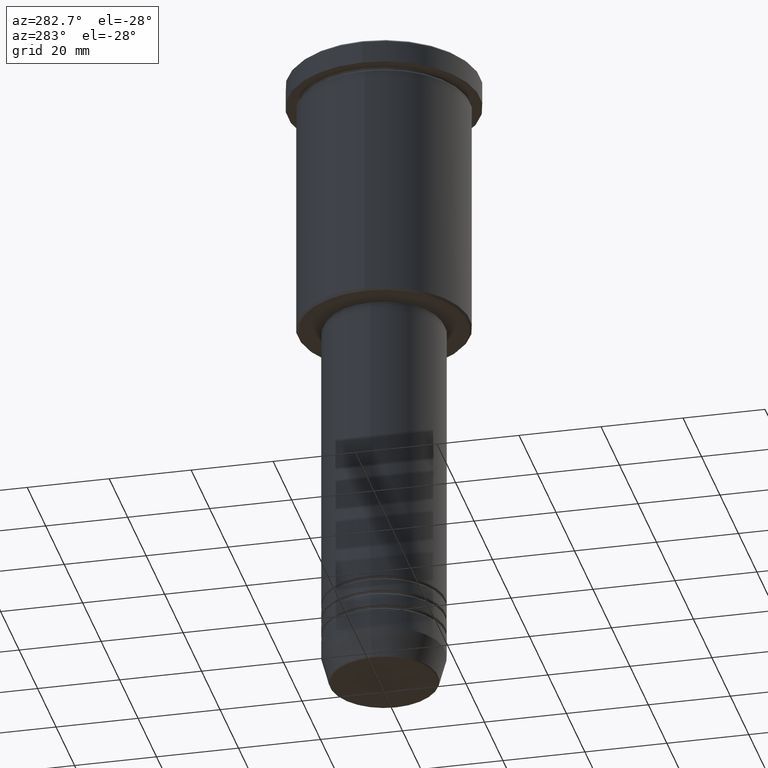
[diagram: clean part render]
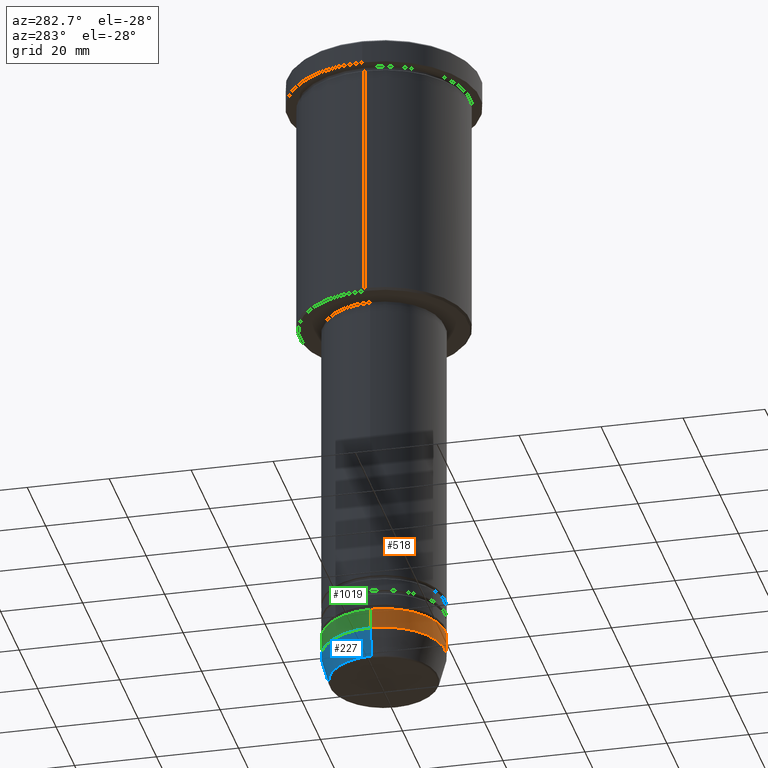
[diagram: same view with three faces highlighted in distinct colors, each labeled with its STEP entity id]
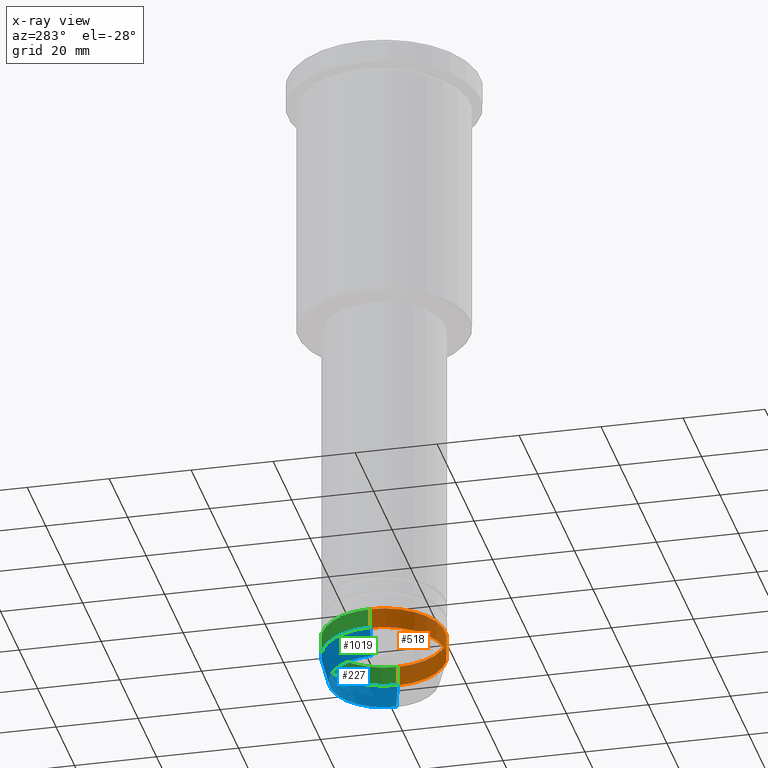
[diagram: x-ray of the same camera — body ghosted, the three highlighted faces saturated]
A machine part, auxiliary view with three faces highlighted in distinct colors.
The next image is the same camera in x-ray (body ghosted, the three faces saturated) — at least one of them is partly hidden behind the body in this view.
Their STEP definitions:

[orange] entity #518 — the highlighted cylindrical surface (partial cylindrical patch) has radius 15 mm, axis along (-0, -0, 1).
#50 = VERTEX_POINT ( 'NONE', #1173 ) ;
#80 = EDGE_CURVE ( 'NONE', #963, #50, #1183, .T. ) ;
#127 = CARTESIAN_POINT ( 'NONE',  ( -15.00000000000000000, 1.836970198721029589E-15, 0.000000000000000000 ) ) ;
#143 = AXIS2_PLACEMENT_3D ( 'NONE', #348, #887, #614 ) ;
#161 = CYLINDRICAL_SURFACE ( 'NONE', #820, 15.00000000000000000 ) ;
#244 = VECTOR ( 'NONE', #1152, 1000.000000000000000 ) ;
#255 = FACE_OUTER_BOUND ( 'NONE', #834, .T. ) ;
#274 = LINE ( 'NONE', #418, #244 ) ;
#348 = CARTESIAN_POINT ( 'NONE',  ( 0.000000000000000000, 0.000000000000000000, -154.0000000000000284 ) ) ;
#401 = DIRECTION ( 'NONE',  ( -0.000000000000000000, -0.000000000000000000, 1.000000000000000000 ) ) ;
#418 = CARTESIAN_POINT ( 'NONE',  ( 15.00000000000000000, 0.000000000000000000, 0.000000000000000000 ) ) ;
#426 = VECTOR ( 'NONE', #401, 1000.000000000000000 ) ;
#496 = EDGE_CURVE ( 'NONE', #543, #935, #536, .T. ) ;
#518 = ADVANCED_FACE ( 'NONE', ( #255 ), #161, .T. ) ;
#532 = AXIS2_PLACEMENT_3D ( 'NONE', #735, #1044, #1024 ) ;
#536 = CIRCLE ( 'NONE', #143, 15.00000000000000000 ) ;
#543 = VERTEX_POINT ( 'NONE', #1050 ) ;
#583 = ORIENTED_EDGE ( 'NONE', *, *, #496, .T. ) ;
#614 = DIRECTION ( 'NONE',  ( 1.000000000000000000, 0.000000000000000000, 0.000000000000000000 ) ) ;
#639 = EDGE_CURVE ( 'NONE', #543, #963, #783, .T. ) ;
#735 = CARTESIAN_POINT ( 'NONE',  ( 0.000000000000000000, 0.000000000000000000, -149.0000000000000284 ) ) ;
#744 = ORIENTED_EDGE ( 'NONE', *, *, #80, .F. ) ;
#782 = CARTESIAN_POINT ( 'NONE',  ( -15.00000000000000000, 1.836970198721029589E-15, -149.0000000000000284 ) ) ;
#783 = LINE ( 'NONE', #127, #426 ) ;
#791 = DIRECTION ( 'NONE',  ( -0.000000000000000000, -0.000000000000000000, 1.000000000000000000 ) ) ;
#796 = CARTESIAN_POINT ( 'NONE',  ( 0.000000000000000000, 0.000000000000000000, 0.000000000000000000 ) ) ;
#820 = AXIS2_PLACEMENT_3D ( 'NONE', #796, #791, #1077 ) ;
#824 = EDGE_CURVE ( 'NONE', #935, #50, #274, .T. ) ;
#834 = EDGE_LOOP ( 'NONE', ( #926, #583, #849, #744 ) ) ;
#849 = ORIENTED_EDGE ( 'NONE', *, *, #824, .T. ) ;
#887 = DIRECTION ( 'NONE',  ( -0.000000000000000000, -0.000000000000000000, 1.000000000000000000 ) ) ;
#926 = ORIENTED_EDGE ( 'NONE', *, *, #639, .F. ) ;
#935 = VERTEX_POINT ( 'NONE', #1056 ) ;
#963 = VERTEX_POINT ( 'NONE', #782 ) ;
#1024 = DIRECTION ( 'NONE',  ( 1.000000000000000000, 0.000000000000000000, 0.000000000000000000 ) ) ;
#1044 = DIRECTION ( 'NONE',  ( -0.000000000000000000, -0.000000000000000000, 1.000000000000000000 ) ) ;
#1050 = CARTESIAN_POINT ( 'NONE',  ( -15.00000000000000000, 1.836970198721029589E-15, -154.0000000000000284 ) ) ;
#1056 = CARTESIAN_POINT ( 'NONE',  ( 15.00000000000000000, 0.000000000000000000, -154.0000000000000284 ) ) ;
#1077 = DIRECTION ( 'NONE',  ( 1.000000000000000000, 0.000000000000000000, 0.000000000000000000 ) ) ;
#1152 = DIRECTION ( 'NONE',  ( -0.000000000000000000, -0.000000000000000000, 1.000000000000000000 ) ) ;
#1173 = CARTESIAN_POINT ( 'NONE',  ( 15.00000000000000000, 0.000000000000000000, -149.0000000000000284 ) ) ;
#1183 = CIRCLE ( 'NONE', #532, 15.00000000000000000 ) ;

[blue] entity #227 — the highlighted conical surface has half-angle 15 deg.
#20 = AXIS2_PLACEMENT_3D ( 'NONE', #1054, #965, #1108 ) ;
#42 = CIRCLE ( 'NONE', #406, 15.00000000000000000 ) ;
#89 = CIRCLE ( 'NONE', #20, 13.22365507213719482 ) ;
#105 = VECTOR ( 'NONE', #1179, 1000.000000000000000 ) ;
#107 = DIRECTION ( 'NONE',  ( 1.000000000000000000, 0.000000000000000000, 0.000000000000000000 ) ) ;
#134 = EDGE_LOOP ( 'NONE', ( #464, #888, #880, #587 ) ) ;
#147 = FACE_OUTER_BOUND ( 'NONE', #134, .T. ) ;
#227 = ADVANCED_FACE ( 'NONE', ( #147 ), #995, .T. ) ;
#249 = CARTESIAN_POINT ( 'NONE',  ( -13.22365507213719660, 1.728200442216588780E-15, -160.6294095225512706 ) ) ;
#399 = CARTESIAN_POINT ( 'NONE',  ( 13.22365507213719482, 0.000000000000000000, -160.6294095225512706 ) ) ;
#406 = AXIS2_PLACEMENT_3D ( 'NONE', #938, #493, #107 ) ;
#412 = EDGE_CURVE ( 'NONE', #935, #543, #42, .T. ) ;
#464 = ORIENTED_EDGE ( 'NONE', *, *, #801, .T. ) ;
#484 = VERTEX_POINT ( 'NONE', #399 ) ;
#493 = DIRECTION ( 'NONE',  ( -0.000000000000000000, -0.000000000000000000, 1.000000000000000000 ) ) ;
#543 = VERTEX_POINT ( 'NONE', #1050 ) ;
#587 = ORIENTED_EDGE ( 'NONE', *, *, #994, .F. ) ;
#589 = AXIS2_PLACEMENT_3D ( 'NONE', #1163, #698, #591 ) ;
#591 = DIRECTION ( 'NONE',  ( 1.000000000000000000, 0.000000000000000000, 0.000000000000000000 ) ) ;
#687 = EDGE_CURVE ( 'NONE', #1160, #543, #1155, .T. ) ;
#698 = DIRECTION ( 'NONE',  ( -0.000000000000000000, -0.000000000000000000, 1.000000000000000000 ) ) ;
#717 = VECTOR ( 'NONE', #1136, 1000.000000000000000 ) ;
#801 = EDGE_CURVE ( 'NONE', #484, #1160, #89, .T. ) ;
#880 = ORIENTED_EDGE ( 'NONE', *, *, #412, .F. ) ;
#888 = ORIENTED_EDGE ( 'NONE', *, *, #687, .T. ) ;
#894 = LINE ( 'NONE', #1161, #105 ) ;
#935 = VERTEX_POINT ( 'NONE', #1056 ) ;
#938 = CARTESIAN_POINT ( 'NONE',  ( 0.000000000000000000, 0.000000000000000000, -154.0000000000000284 ) ) ;
#943 = CARTESIAN_POINT ( 'NONE',  ( -15.00000000000000000, 1.836970198721029589E-15, -154.0000000000000284 ) ) ;
#965 = DIRECTION ( 'NONE',  ( -0.000000000000000000, -0.000000000000000000, 1.000000000000000000 ) ) ;
#994 = EDGE_CURVE ( 'NONE', #484, #935, #894, .T. ) ;
#995 = CONICAL_SURFACE ( 'NONE', #589, 15.00000000000000000, 0.2617993877991500740 ) ;
#1050 = CARTESIAN_POINT ( 'NONE',  ( -15.00000000000000000, 1.836970198721029589E-15, -154.0000000000000284 ) ) ;
#1054 = CARTESIAN_POINT ( 'NONE',  ( 0.000000000000000000, 0.000000000000000000, -160.6294095225512706 ) ) ;
#1056 = CARTESIAN_POINT ( 'NONE',  ( 15.00000000000000000, 0.000000000000000000, -154.0000000000000284 ) ) ;
#1108 = DIRECTION ( 'NONE',  ( 1.000000000000000000, 0.000000000000000000, 0.000000000000000000 ) ) ;
#1136 = DIRECTION ( 'NONE',  ( -0.2588190451025213501, 3.169619151431772337E-17, 0.9659258262890680902 ) ) ;
#1155 = LINE ( 'NONE', #943, #717 ) ;
#1160 = VERTEX_POINT ( 'NONE', #249 ) ;
#1161 = CARTESIAN_POINT ( 'NONE',  ( 15.00000000000000000, 0.000000000000000000, -154.0000000000000284 ) ) ;
#1163 = CARTESIAN_POINT ( 'NONE',  ( 0.000000000000000000, 0.000000000000000000, -154.0000000000000284 ) ) ;
#1179 = DIRECTION ( 'NONE',  ( 0.2588190451025213501, 0.000000000000000000, 0.9659258262890680902 ) ) ;

[green] entity #1019 — the highlighted cylindrical surface (partial cylindrical patch) has radius 15 mm, axis along (-0, -0, 1).
#27 = ORIENTED_EDGE ( 'NONE', *, *, #1052, .F. ) ;
#29 = FACE_OUTER_BOUND ( 'NONE', #1029, .T. ) ;
#42 = CIRCLE ( 'NONE', #406, 15.00000000000000000 ) ;
#50 = VERTEX_POINT ( 'NONE', #1173 ) ;
#107 = DIRECTION ( 'NONE',  ( 1.000000000000000000, 0.000000000000000000, 0.000000000000000000 ) ) ;
#127 = CARTESIAN_POINT ( 'NONE',  ( -15.00000000000000000, 1.836970198721029589E-15, 0.000000000000000000 ) ) ;
#149 = ORIENTED_EDGE ( 'NONE', *, *, #412, .T. ) ;
#244 = VECTOR ( 'NONE', #1152, 1000.000000000000000 ) ;
#274 = LINE ( 'NONE', #418, #244 ) ;
#279 = ORIENTED_EDGE ( 'NONE', *, *, #639, .T. ) ;
#401 = DIRECTION ( 'NONE',  ( -0.000000000000000000, -0.000000000000000000, 1.000000000000000000 ) ) ;
#406 = AXIS2_PLACEMENT_3D ( 'NONE', #938, #493, #107 ) ;
#412 = EDGE_CURVE ( 'NONE', #935, #543, #42, .T. ) ;
#418 = CARTESIAN_POINT ( 'NONE',  ( 15.00000000000000000, 0.000000000000000000, 0.000000000000000000 ) ) ;
#426 = VECTOR ( 'NONE', #401, 1000.000000000000000 ) ;
#463 = CARTESIAN_POINT ( 'NONE',  ( 0.000000000000000000, 0.000000000000000000, 0.000000000000000000 ) ) ;
#493 = DIRECTION ( 'NONE',  ( -0.000000000000000000, -0.000000000000000000, 1.000000000000000000 ) ) ;
#543 = VERTEX_POINT ( 'NONE', #1050 ) ;
#557 = CARTESIAN_POINT ( 'NONE',  ( 0.000000000000000000, 0.000000000000000000, -149.0000000000000284 ) ) ;
#592 = CIRCLE ( 'NONE', #844, 15.00000000000000000 ) ;
#639 = EDGE_CURVE ( 'NONE', #543, #963, #783, .T. ) ;
#650 = ORIENTED_EDGE ( 'NONE', *, *, #824, .F. ) ;
#782 = CARTESIAN_POINT ( 'NONE',  ( -15.00000000000000000, 1.836970198721029589E-15, -149.0000000000000284 ) ) ;
#783 = LINE ( 'NONE', #127, #426 ) ;
#786 = AXIS2_PLACEMENT_3D ( 'NONE', #463, #1172, #974 ) ;
#818 = CYLINDRICAL_SURFACE ( 'NONE', #786, 15.00000000000000000 ) ;
#824 = EDGE_CURVE ( 'NONE', #935, #50, #274, .T. ) ;
#844 = AXIS2_PLACEMENT_3D ( 'NONE', #557, #860, #996 ) ;
#860 = DIRECTION ( 'NONE',  ( -0.000000000000000000, -0.000000000000000000, 1.000000000000000000 ) ) ;
#935 = VERTEX_POINT ( 'NONE', #1056 ) ;
#938 = CARTESIAN_POINT ( 'NONE',  ( 0.000000000000000000, 0.000000000000000000, -154.0000000000000284 ) ) ;
#963 = VERTEX_POINT ( 'NONE', #782 ) ;
#974 = DIRECTION ( 'NONE',  ( 1.000000000000000000, 0.000000000000000000, 0.000000000000000000 ) ) ;
#996 = DIRECTION ( 'NONE',  ( 1.000000000000000000, 0.000000000000000000, 0.000000000000000000 ) ) ;
#1019 = ADVANCED_FACE ( 'NONE', ( #29 ), #818, .T. ) ;
#1029 = EDGE_LOOP ( 'NONE', ( #149, #279, #27, #650 ) ) ;
#1050 = CARTESIAN_POINT ( 'NONE',  ( -15.00000000000000000, 1.836970198721029589E-15, -154.0000000000000284 ) ) ;
#1052 = EDGE_CURVE ( 'NONE', #50, #963, #592, .T. ) ;
#1056 = CARTESIAN_POINT ( 'NONE',  ( 15.00000000000000000, 0.000000000000000000, -154.0000000000000284 ) ) ;
#1152 = DIRECTION ( 'NONE',  ( -0.000000000000000000, -0.000000000000000000, 1.000000000000000000 ) ) ;
#1172 = DIRECTION ( 'NONE',  ( -0.000000000000000000, -0.000000000000000000, 1.000000000000000000 ) ) ;
#1173 = CARTESIAN_POINT ( 'NONE',  ( 15.00000000000000000, 0.000000000000000000, -149.0000000000000284 ) ) ;